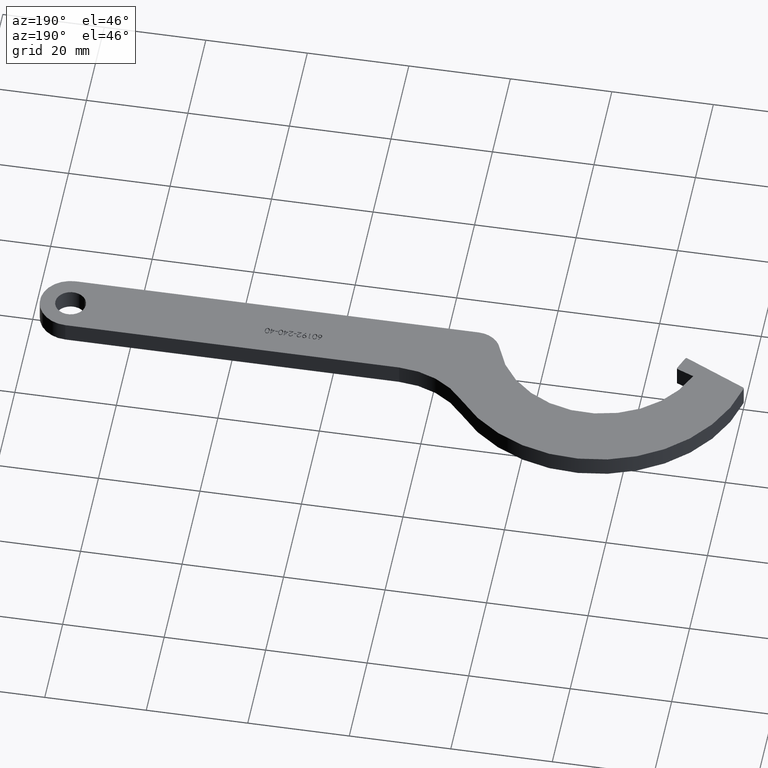
[diagram: clean part render]
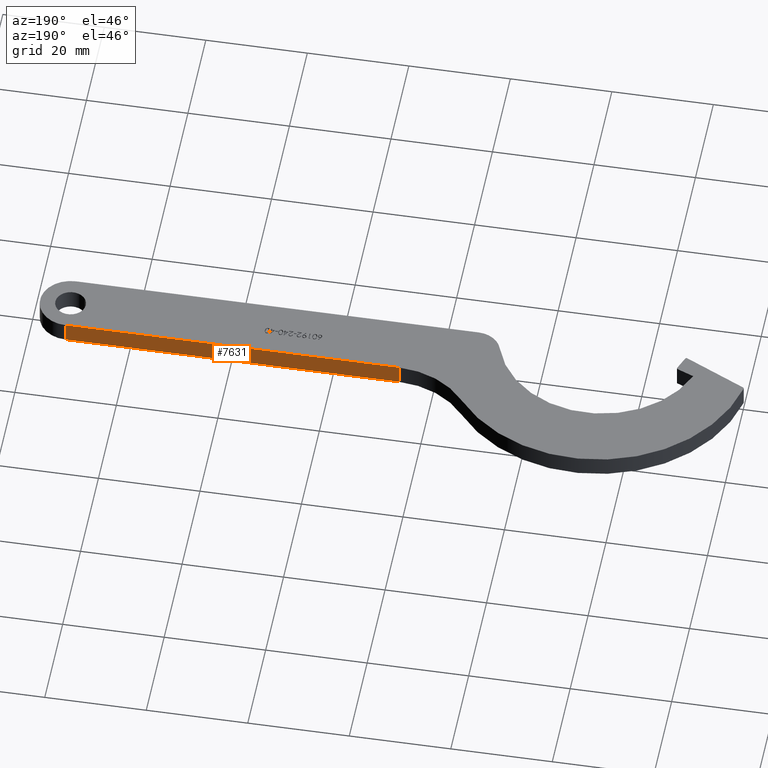
[diagram: same view with one face highlighted and labeled with its STEP entity id]
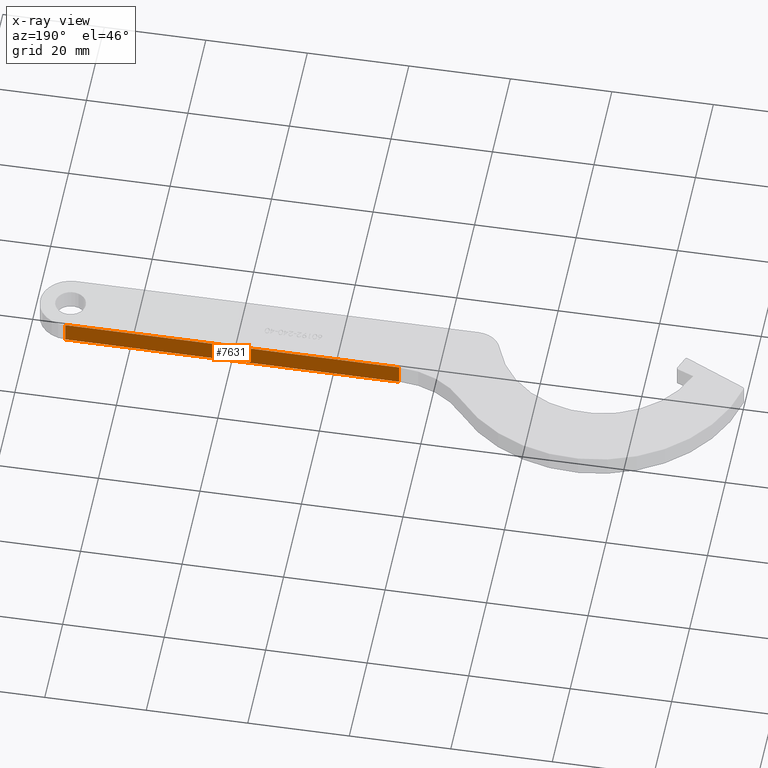
[diagram: x-ray of the same camera — body ghosted, the highlighted face saturated]
A machine part, auxiliary view. The second image highlights one B-rep face of the part: STEP entity #7631.
The next image is the same camera in x-ray: the body ghosted, the highlighted face saturated — about 0% of this face is hidden behind the body in this view.
In plain terms, the highlighted planar face has unit normal (0, -1, 0).
Its self-contained STEP definition (entity closure, byte-faithful):
#35 = DIRECTION ( 'NONE',  ( -1.000000000000000000, -1.450403193124833200E-016, 0.0000000000000000000 ) ) ;
#141 = CARTESIAN_POINT ( 'NONE',  ( 132.4844145945849900, 6.274367385746950600, 0.0000000000000000000 ) ) ;
#801 = LINE ( 'NONE', #3337, #7481 ) ;
#1102 = EDGE_CURVE ( 'NONE', #7597, #6817, #801, .T. ) ;
#1383 = EDGE_CURVE ( 'NONE', #6817, #3096, #7476, .T. ) ;
#1831 = AXIS2_PLACEMENT_3D ( 'NONE', #3712, #4944, #7594 ) ;
#2146 = CARTESIAN_POINT ( 'NONE',  ( 66.70285010894153300, 6.274367385746940900, 0.0000000000000000000 ) ) ;
#2402 = VECTOR ( 'NONE', #3207, 1000.000000000000000 ) ;
#2536 = VECTOR ( 'NONE', #7224, 1000.000000000000000 ) ;
#2914 = ORIENTED_EDGE ( 'NONE', *, *, #1102, .F. ) ;
#3096 = VERTEX_POINT ( 'NONE', #2146 ) ;
#3139 = ORIENTED_EDGE ( 'NONE', *, *, #1383, .F. ) ;
#3199 = EDGE_CURVE ( 'NONE', #7597, #5943, #4978, .T. ) ;
#3207 = DIRECTION ( 'NONE',  ( -1.000000000000000000, -1.450403193124833200E-016, 0.0000000000000000000 ) ) ;
#3337 = CARTESIAN_POINT ( 'NONE',  ( 132.4844145945849900, 6.274367385746950600, 4.000000000000000000 ) ) ;
#3392 = EDGE_LOOP ( 'NONE', ( #8189, #3139, #2914, #6580 ) ) ;
#3712 = CARTESIAN_POINT ( 'NONE',  ( 132.4844145945849900, 6.274367385746950600, 4.000000000000000000 ) ) ;
#4121 = DIRECTION ( 'NONE',  ( -0.0000000000000000000, -0.0000000000000000000, -1.000000000000000000 ) ) ;
#4797 = EDGE_CURVE ( 'NONE', #5943, #3096, #5903, .T. ) ;
#4944 = DIRECTION ( 'NONE',  ( 1.450403193124833400E-016, -1.000000000000000000, 0.0000000000000000000 ) ) ;
#4978 = LINE ( 'NONE', #6830, #7554 ) ;
#5605 = CARTESIAN_POINT ( 'NONE',  ( 132.4844145945849900, 6.274367385746950600, 4.000000000000000000 ) ) ;
#5751 = CARTESIAN_POINT ( 'NONE',  ( 132.4844145945849900, 6.274367385746950600, 0.0000000000000000000 ) ) ;
#5903 = LINE ( 'NONE', #5751, #2402 ) ;
#5943 = VERTEX_POINT ( 'NONE', #141 ) ;
#5970 = CARTESIAN_POINT ( 'NONE',  ( 66.70285010894153300, 6.274367385746940900, 4.000000000000000000 ) ) ;
#6454 = CARTESIAN_POINT ( 'NONE',  ( 66.70285010894153300, 6.274367385746940900, 4.000000000000000000 ) ) ;
#6580 = ORIENTED_EDGE ( 'NONE', *, *, #3199, .T. ) ;
#6817 = VERTEX_POINT ( 'NONE', #6454 ) ;
#6830 = CARTESIAN_POINT ( 'NONE',  ( 132.4844145945849900, 6.274367385746950600, 4.000000000000000000 ) ) ;
#6902 = FACE_OUTER_BOUND ( 'NONE', #3392, .T. ) ;
#7224 = DIRECTION ( 'NONE',  ( -0.0000000000000000000, -0.0000000000000000000, -1.000000000000000000 ) ) ;
#7476 = LINE ( 'NONE', #5970, #2536 ) ;
#7481 = VECTOR ( 'NONE', #35, 1000.000000000000000 ) ;
#7554 = VECTOR ( 'NONE', #4121, 1000.000000000000000 ) ;
#7594 = DIRECTION ( 'NONE',  ( 1.000000000000000000, 1.450403193124833400E-016, 0.0000000000000000000 ) ) ;
#7597 = VERTEX_POINT ( 'NONE', #5605 ) ;
#7618 = PLANE ( 'NONE',  #1831 ) ;
#7631 = ADVANCED_FACE ( 'NONE', ( #6902 ), #7618, .F. ) ;
#8189 = ORIENTED_EDGE ( 'NONE', *, *, #4797, .T. ) ;